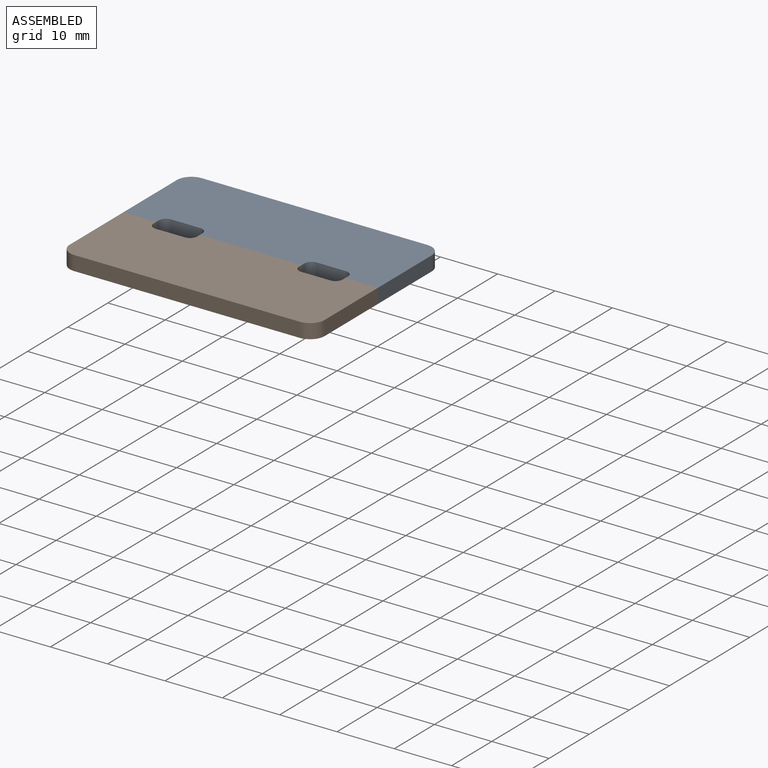
[diagram: assembled view]
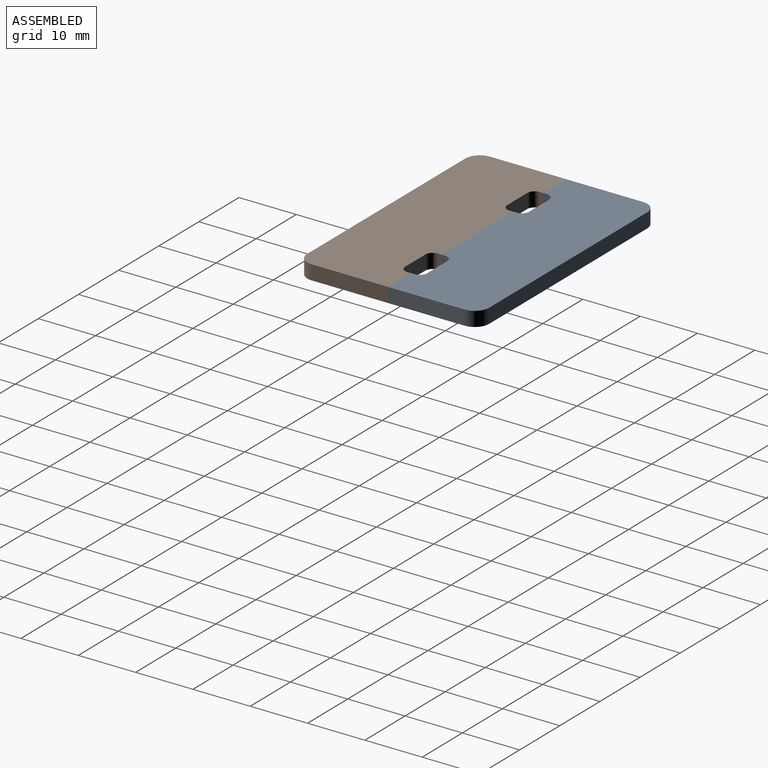
[diagram: assembled view, second angle]
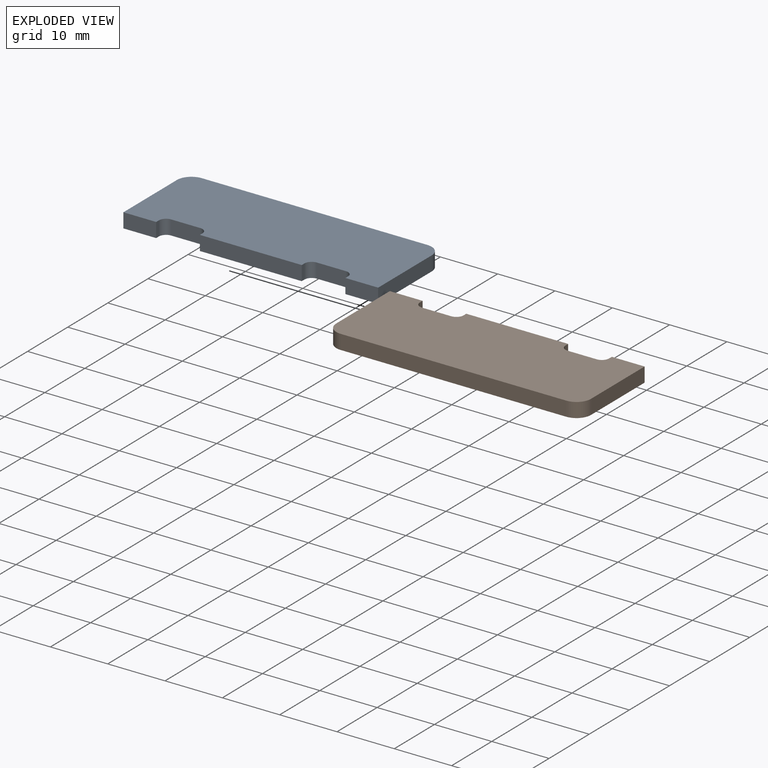
[diagram: exploded view]
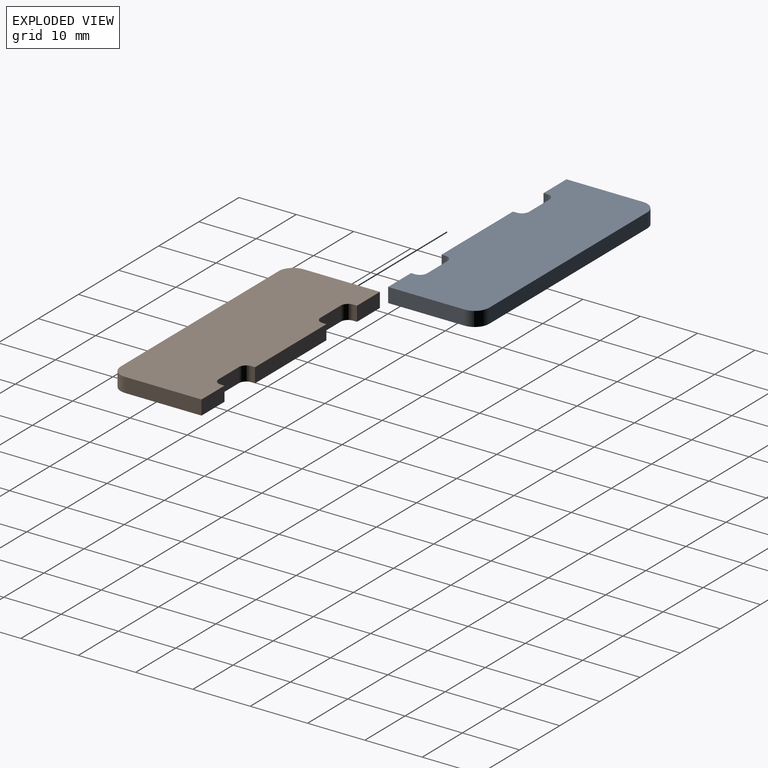
[diagram: exploded view, second angle]
ASSEMBLY  parts=2 mates=3
PART A: 20 faces, bbox 44.5x15.9x2.5 mm
  f0: plane 2.54x0.66mm, normal (1,0,0), area 1.7mm2, adj f1,f17,f18,f19
  f1: cylinder r=1.27mm len=2.54mm, axis (0,0,-1), area 5.1mm2, adj f0,f2,f18,f19
  f2: plane 5.08x2.54mm, normal (0,-1,0), area 12.9mm2, adj f1,f3,f18,f19
  f3: cylinder r=1.27mm len=2.54mm, axis (0,0,-1), area 5.1mm2, adj f2,f4,f18,f19
  f4: plane 2.54x0.66mm, normal (-1,0,0), area 1.7mm2, adj f3,f5,f18,f19
  f5: plane 17.78x2.54mm, normal (0,-1,0), area 45.2mm2, adj f4,f6,f18,f19
  f6: plane 2.54x0.66mm, normal (1,0,0), area 1.7mm2, adj f5,f7,f18,f19
  f7: cylinder r=1.27mm len=2.54mm, axis (0,0,-1), area 5.1mm2, adj f6,f8,f18,f19
  f8: plane 5.08x2.54mm, normal (0,-1,0), area 12.9mm2, adj f7,f9,f18,f19
  f9: cylinder r=1.27mm len=2.54mm, axis (0,0,-1), area 5.1mm2, adj f8,f10,f18,f19
  f10: plane 2.54x0.66mm, normal (-1,0,0), area 1.7mm2, adj f9,f11,f18,f19
  f11: plane 5.72x2.54mm, normal (0,-1,0), area 14.5mm2, adj f10,f12,f18,f19
  f12: plane 13.34x2.54mm, normal (1,0,0), area 33.9mm2, adj f11,f13,f18,f19
  f13: cylinder r=2.54mm len=2.54mm, axis (0,0,-1), area 10.1mm2, adj f12,f14,f18,f19
  f14: plane 39.37x2.54mm, normal (0,1,0), area 100mm2, adj f13,f15,f18,f19
  f15: cylinder r=2.54mm len=2.54mm, axis (0,0,-1), area 10.1mm2, adj f14,f16,f18,f19
  f16: plane 13.34x2.54mm, normal (-1,0,0), area 33.9mm2, adj f15,f17,f18,f19
  f17: plane 5.72x2.54mm, normal (0,-1,0), area 14.5mm2, adj f0,f16,f18,f19
  f18: plane 44.45x15.88mm, normal (0,0,1), area 674.8mm2, adj f0,f1,f2,f3,f4,f5,f6,f7
  f19: plane 44.45x15.88mm, normal (0,0,-1), area 674.8mm2, adj f0,f1,f2,f3,f4,f5,f6,f7
PART B: same geometry as A
PLACE A t=(-15.82,-7.48,1.21)mm fixed
PLACE B rot(axis=(1,0,0),180deg) t=(-15.82,-7.48,3.75)mm
MATE planar A.f16 <-> B.f16  axis (-1,0,0) through (-38.04,-0.81,2.48)mm
MATE planar A.f19 <-> B.f18  axis (0,0,-1) through (-15.82,0.72,1.21)mm
MATE planar B.f5 <-> A.f5  axis (0,1,0) through (-15.82,-7.48,2.48)mm
